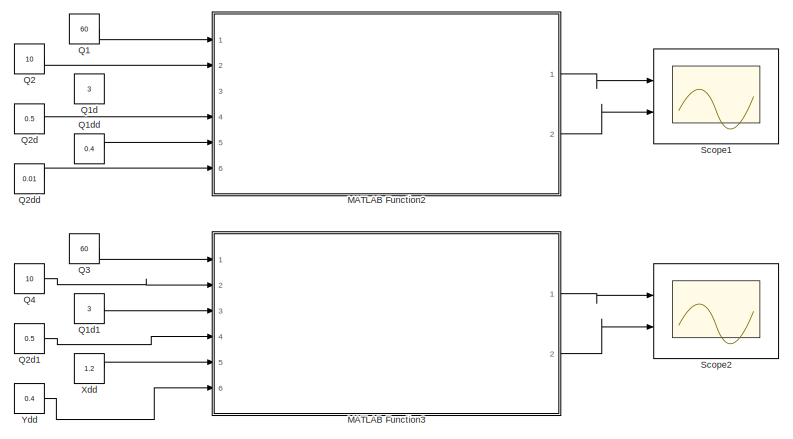
[diagram: root canvas - part 1/3, top center region]
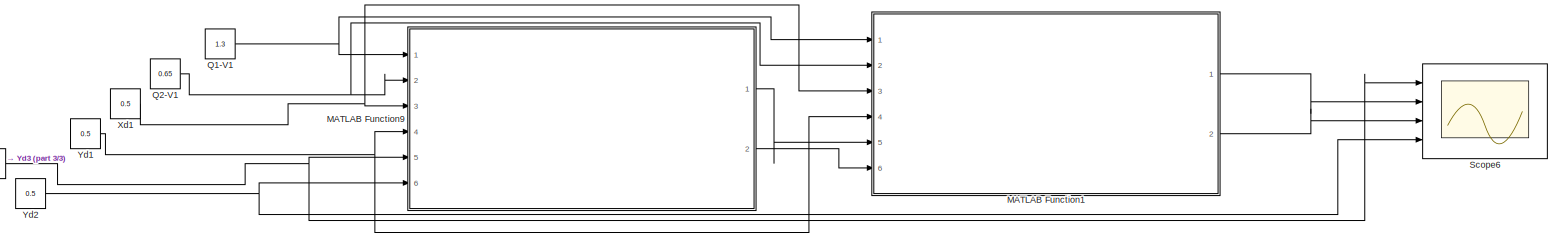
[diagram: root canvas - part 2/3, full width, bottom band]
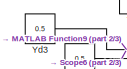
[diagram: root canvas - part 3/3, bottom left region]
MODEL slx_a79e1c5b3b64
KIND model
CONFIG AbsTol = auto
CONFIG EnableMultiTasking = off
CONFIG FixedStep = auto
CONFIG MaxStep = auto
CONFIG MinStep = auto
CONFIG RelTol = 1e-3
CONFIG SampleTimeConstraint = Unconstrained
CONFIG SolverName = VariableStepAuto
CONFIG StartTime = 0.0
CONFIG StopTime = 3
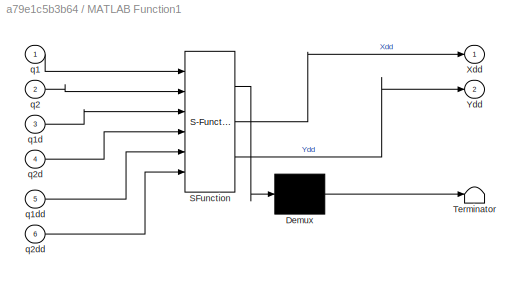
BLOCK [SubSystem] MATLAB Function1
  ErrorFcn = Stateflow.Translate.translate
  PermitHierarchicalResolution = ExplicitOnly
  Ports = [6, 2]
  RequestExecContextInheritance = off
  SFBlockType = MATLAB Function
  TreatAsAtomicUnit = on
BLOCK [Demux] MATLAB Function1/ Demux 
  Outputs = 1
  Ports = [1, 1]
BLOCK [S-Function] MATLAB Function1/ SFunction 
  EnableBusSupport = on
  FunctionName = sf_sfun
  PortCounts = [6 3]
  Ports = [6, 3]
  SFcnIsStateOwnerBlock = off
  SFunctionDeploymentMode = off
  Tag = Stateflow S-Function 1
BLOCK [Terminator] MATLAB Function1/ Terminator 
BLOCK [Outport] MATLAB Function1/Xdd
BLOCK [Outport] MATLAB Function1/Ydd
  Port = 2
BLOCK [Inport] MATLAB Function1/q1
BLOCK [Inport] MATLAB Function1/q1d
  Port = 3
BLOCK [Inport] MATLAB Function1/q1dd
  Port = 5
BLOCK [Inport] MATLAB Function1/q2
  Port = 2
BLOCK [Inport] MATLAB Function1/q2d
  Port = 4
BLOCK [Inport] MATLAB Function1/q2dd
  Port = 6
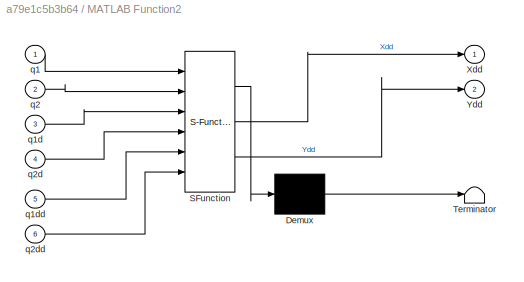
BLOCK [SubSystem] MATLAB Function2
  ErrorFcn = Stateflow.Translate.translate
  PermitHierarchicalResolution = ExplicitOnly
  Ports = [6, 2]
  RequestExecContextInheritance = off
  SFBlockType = MATLAB Function
  TreatAsAtomicUnit = on
BLOCK [Demux] MATLAB Function2/ Demux 
  Outputs = 1
  Ports = [1, 1]
BLOCK [S-Function] MATLAB Function2/ SFunction 
  EnableBusSupport = on
  FunctionName = sf_sfun
  PortCounts = [6 3]
  Ports = [6, 3]
  SFcnIsStateOwnerBlock = off
  SFunctionDeploymentMode = off
  Tag = Stateflow S-Function 2
BLOCK [Terminator] MATLAB Function2/ Terminator 
BLOCK [Outport] MATLAB Function2/Xdd
BLOCK [Outport] MATLAB Function2/Ydd
  Port = 2
BLOCK [Inport] MATLAB Function2/q1
BLOCK [Inport] MATLAB Function2/q1d
  Port = 3
BLOCK [Inport] MATLAB Function2/q1dd
  Port = 5
BLOCK [Inport] MATLAB Function2/q2
  Port = 2
BLOCK [Inport] MATLAB Function2/q2d
  Port = 4
BLOCK [Inport] MATLAB Function2/q2dd
  Port = 6
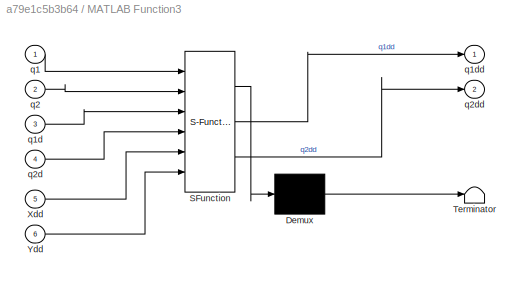
BLOCK [SubSystem] MATLAB Function3
  ErrorFcn = Stateflow.Translate.translate
  PermitHierarchicalResolution = ExplicitOnly
  Ports = [6, 2]
  RequestExecContextInheritance = off
  SFBlockType = MATLAB Function
  TreatAsAtomicUnit = on
BLOCK [Demux] MATLAB Function3/ Demux 
  Outputs = 1
  Ports = [1, 1]
BLOCK [S-Function] MATLAB Function3/ SFunction 
  EnableBusSupport = on
  FunctionName = sf_sfun
  PortCounts = [6 3]
  Ports = [6, 3]
  SFcnIsStateOwnerBlock = off
  SFunctionDeploymentMode = off
  Tag = Stateflow S-Function 3
BLOCK [Terminator] MATLAB Function3/ Terminator 
BLOCK [Inport] MATLAB Function3/Xdd
  Port = 5
BLOCK [Inport] MATLAB Function3/Ydd
  Port = 6
BLOCK [Inport] MATLAB Function3/q1
BLOCK [Inport] MATLAB Function3/q1d
  Port = 3
BLOCK [Outport] MATLAB Function3/q1dd
BLOCK [Inport] MATLAB Function3/q2
  Port = 2
BLOCK [Inport] MATLAB Function3/q2d
  Port = 4
BLOCK [Outport] MATLAB Function3/q2dd
  Port = 2
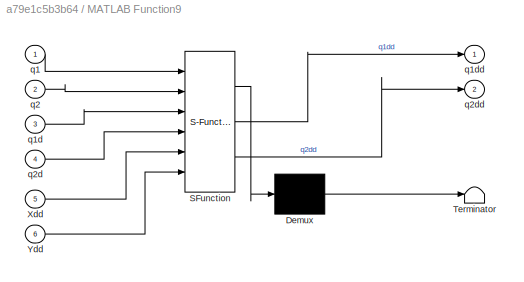
BLOCK [SubSystem] MATLAB Function9
  ErrorFcn = Stateflow.Translate.translate
  PermitHierarchicalResolution = ExplicitOnly
  Ports = [6, 2]
  RequestExecContextInheritance = off
  SFBlockType = MATLAB Function
  TreatAsAtomicUnit = on
BLOCK [Demux] MATLAB Function9/ Demux 
  Outputs = 1
  Ports = [1, 1]
BLOCK [S-Function] MATLAB Function9/ SFunction 
  EnableBusSupport = on
  FunctionName = sf_sfun
  PortCounts = [6 3]
  Ports = [6, 3]
  SFcnIsStateOwnerBlock = off
  SFunctionDeploymentMode = off
  Tag = Stateflow S-Function 10
BLOCK [Terminator] MATLAB Function9/ Terminator 
BLOCK [Inport] MATLAB Function9/Xdd
  Port = 5
BLOCK [Inport] MATLAB Function9/Ydd
  Port = 6
BLOCK [Inport] MATLAB Function9/q1
BLOCK [Inport] MATLAB Function9/q1d
  Port = 3
BLOCK [Outport] MATLAB Function9/q1dd
BLOCK [Inport] MATLAB Function9/q2
  Port = 2
BLOCK [Inport] MATLAB Function9/q2d
  Port = 4
BLOCK [Outport] MATLAB Function9/q2dd
  Port = 2
BLOCK [Constant] Q1
  Value = 60
BLOCK [Constant] Q1-V1
  Value = 1.3
BLOCK [Constant] Q1d
  Value = 3
BLOCK [Constant] Q1d1
  Value = 3
BLOCK [Constant] Q1dd
  Value = 0.4
BLOCK [Constant] Q2
  Value = 10
BLOCK [Constant] Q2-V1
  Value = 0.65
BLOCK [Constant] Q2d
  Value = 0.5
BLOCK [Constant] Q2d1
  Value = 0.5
BLOCK [Constant] Q2dd
  Value = 0.01
BLOCK [Constant] Q3
  Value = 60
BLOCK [Constant] Q4
  Value = 10
BLOCK [Scope] Scope1
  Floating = off
  NumInputPorts = 2
  Ports = [2]
  ScopeSpecificationString = Simulink.scopes.TimeScopeBlockCfg('CurrentConfiguration', extmgr.ConfigurationSet(extmgr.Configuration('Core','General UI',true),extmgr.Configuration('Core','Source UI',true),extmgr.Configuration('Sources','WiredSimulink',true),extmgr.Configuration('Visuals','Time Domain',true,'SerializedDisplays',{struct('MinYLimReal','-4.34993','MaxYLimReal','2.82628','YLabelReal','','MinYLimMag','0.00000','MaxY...<+1481ch>
BLOCK [Scope] Scope2
  Floating = off
  NumInputPorts = 2
  Ports = [2]
  ScopeSpecificationString = Simulink.scopes.TimeScopeBlockCfg('CurrentConfiguration', extmgr.ConfigurationSet(extmgr.Configuration('Core','General UI',true),extmgr.Configuration('Core','Source UI',true),extmgr.Configuration('Sources','WiredSimulink',true,'DataLoggingVariableName','ScopeData2'),extmgr.Configuration('Visuals','Time Domain',true,'SerializedDisplays',{struct('MinYLimReal','-1.00000','MaxYLimReal','1.00000','YLab...<+1522ch>
BLOCK [Scope] Scope6
  Floating = off
  NumInputPorts = 4
  Ports = [4]
  ScopeSpecificationString = Simulink.scopes.TimeScopeBlockCfg('CurrentConfiguration', extmgr.ConfigurationSet(extmgr.Configuration('Core','General UI',true),extmgr.Configuration('Core','Source UI',true),extmgr.Configuration('Sources','WiredSimulink',true,'DataLoggingVariableName','ScopeData1'),extmgr.Configuration('Visuals','Time Domain',true,'SerializedDisplays',{struct('MinYLimReal','-0.39942','MaxYLimReal','0.60704','YLab...<+1531ch>
BLOCK [Constant] Xd1
  Value = 0.5
BLOCK [Constant] Xdd
  Value = 1.2
BLOCK [Constant] Yd1
  Value = 0.5
BLOCK [Constant] Yd2
  Value = 0.5
BLOCK [Constant] Yd3
  Value = 0.5
BLOCK [Constant] Ydd
  Value = 0.4
LINE MATLAB Function1:1 -> Scope6:2
LINE MATLAB Function1:2 -> Scope6:3
LINE MATLAB Function2:1 -> Scope1:1
LINE MATLAB Function2:2 -> Scope1:2
LINE MATLAB Function3:1 -> Scope2:1
LINE MATLAB Function3:2 -> Scope2:2
LINE MATLAB Function9:1 -> MATLAB Function1:5
LINE MATLAB Function9:2 -> MATLAB Function1:6
NET Q1-V1:1 -> MATLAB Function1:1, MATLAB Function9:1
LINE Q1:1 -> MATLAB Function2:1
LINE Q1d1:1 -> MATLAB Function3:3
LINE Q1dd:1 -> MATLAB Function2:5
NET Q2-V1:1 -> MATLAB Function1:2, MATLAB Function9:2
LINE Q2:1 -> MATLAB Function2:2
LINE Q2d1:1 -> MATLAB Function3:4
LINE Q2d:1 -> MATLAB Function2:4
LINE Q2dd:1 -> MATLAB Function2:6
LINE Q3:1 -> MATLAB Function3:1
LINE Q4:1 -> MATLAB Function3:2
NET Xd1:1 -> MATLAB Function1:3, MATLAB Function9:3
LINE Xdd:1 -> MATLAB Function3:5
NET Yd1:1 -> MATLAB Function1:4, MATLAB Function9:4
NET Yd2:1 -> MATLAB Function9:6, Scope6:4
NET Yd3:1 -> MATLAB Function9:5, Scope6:1
LINE Ydd:1 -> MATLAB Function3:6
note: NET lines group one-source signal fan-out (src -> all destinations, sorted); 1:1 wires keep LINE
CHART MATLAB Function1 states=1 transitions=1
  STATE_LABEL 'eML_blk_kernel()'
  STATE_LABEL 'SCRIPT:\nfunction [Xdd,Ydd] = RP_ACCELERATION_FW(q1,q2,q1d,q2d,q1dd,q2dd)\nL1=0.5;\n\nJ = [-(L1+q2)*sind(q1),cosd(q1);\n      (L1+q2)*cosd(q1),sind(q1)];\nJd = [(-(L1+q2)*cosd(q1)*q1d - sind(q1) * q2d) , -sind(q1) * q1d;\n      ( (L1+q2)*sind(q1)*q1d + cosd(q1) * q2d) ,  cosd(q1) * q1d];\n    \n  Xdd = Jd(1,1)*q1d + Jd(1,2)*q2d + J(1,1)*q1dd + J(1,2)*q2dd;\n  Ydd = Jd(2,1)*q1d + Jd(2,2)*q2d + J(2,1)*q1dd + ...<+21ch>'
CHART MATLAB Function2 states=1 transitions=1
  STATE_LABEL 'eML_blk_kernel()'
  STATE_LABEL 'SCRIPT:\nfunction [Xdd,Ydd] = RP_ACCELERATION_FW(q1,q2,q1d,q2d,q1dd,q2dd)\nL1=0.5;\n\nJ = [-(L1+q2)*sind(q1),cosd(q1);\n      (L1+q2)*cosd(q1),sind(q1)];\nJd = [(-(L1+q2)*cosd(q1)*q1d - sind(q1) * q2d) , -sind(q1) * q1d;\n      ( (L1+q2)*sind(q1)*q1d + cosd(q1) * q2d) ,  cosd(q1) * q1d];\n    \n  Xdd = Jd(1,1)*q1d + Jd(1,2)*q2d + J(1,1)*q1dd + J(1,2)*q2dd;\n  Ydd = Jd(2,1)*q1d + Jd(2,2)*q2d + J(2,1)*q1dd + ...<+21ch>'
CHART MATLAB Function3 states=1 transitions=1
  STATE_LABEL 'eML_blk_kernel()'
  STATE_LABEL 'SCRIPT:\nfunction [q1dd,q2dd] = RP_ACCELERATION_INV(q1,q2,q1d,q2d,Xdd,Ydd)\nL1=0.5;\n\nJ = [-(L1+q2)*sind(q1),cosd(q1);\n      (L1+q2)*cosd(q1),sind(q1)];\nJd = [(-(L1+q2)*cosd(q1)*q1d - sind(q1) * q2d) , -sind(q1) * q1d;\n      ( (L1+q2)*sind(q1)*q1d + cosd(q1) * q2d) ,  cosd(q1) * q1d];\n    \n  Xdd = Jd(1,1)*q1d + Jd(1,2)*q2d + J(1,1)* q1dd + J(1,2) * q2dd ;\n  Ydd = Jd(2,1)*q1d + Jd(2,2)*q2d + J(2,1)* q...<+143ch>'
CHART MATLAB Function9 states=1 transitions=1
  STATE_LABEL 'eML_blk_kernel()'
  STATE_LABEL 'SCRIPT:\nfunction [q1dd,q2dd] = RP_ACCELERATION_INV(q1,q2,q1d,q2d,Xdd,Ydd)\nL1=0.5;\n\nJ = [-(L1+q2)*sind(q1),cosd(q1);\n      (L1+q2)*cosd(q1),sind(q1)];\nJd = [(-(L1+q2)*cosd(q1)*q1d - sind(q1) * q2d) , -sind(q1) * q1d;\n      ( (L1+q2)*sind(q1)*q1d + cosd(q1) * q2d) ,  cosd(q1) * q1d];\n    \n  Xdd = Jd(1,1)*q1d + Jd(1,2)*q2d + J(1,1)* q1dd + J(1,2) * q2dd ;\n  Ydd = Jd(2,1)*q1d + Jd(2,2)*q2d + J(2,1)* q...<+143ch>'
CHART  states=0 transitions=0
CHART  states=0 transitions=0
CHART  states=0 transitions=0
CHART  states=0 transitions=0
